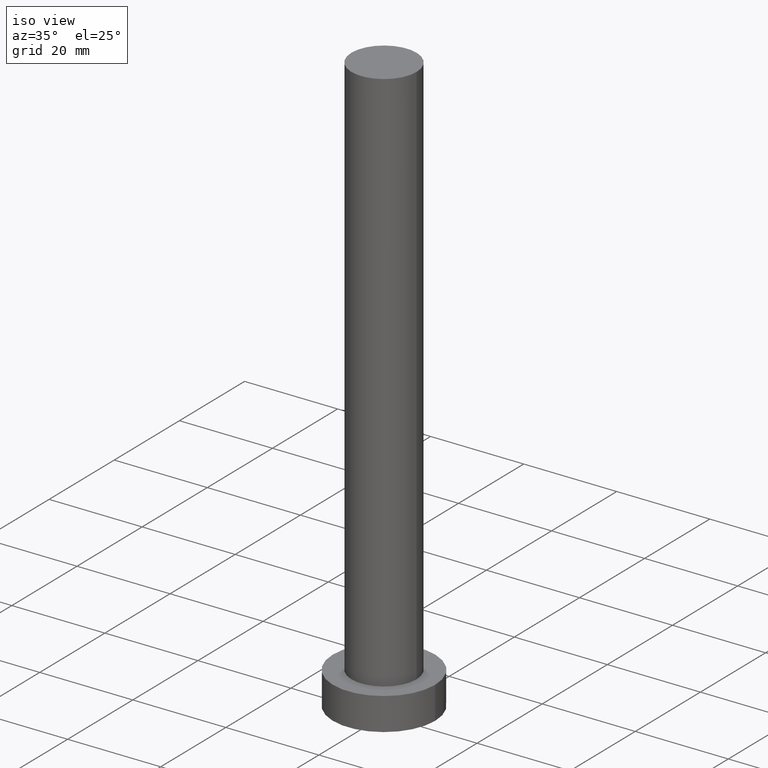
[diagram: clean part render]
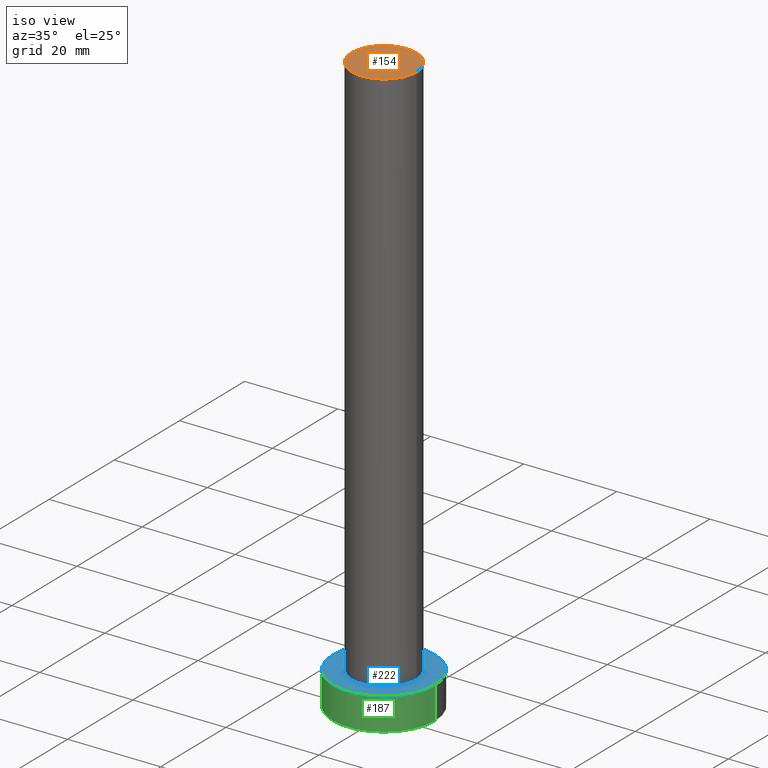
[diagram: same view with three faces highlighted in distinct colors, each labeled with its STEP entity id]
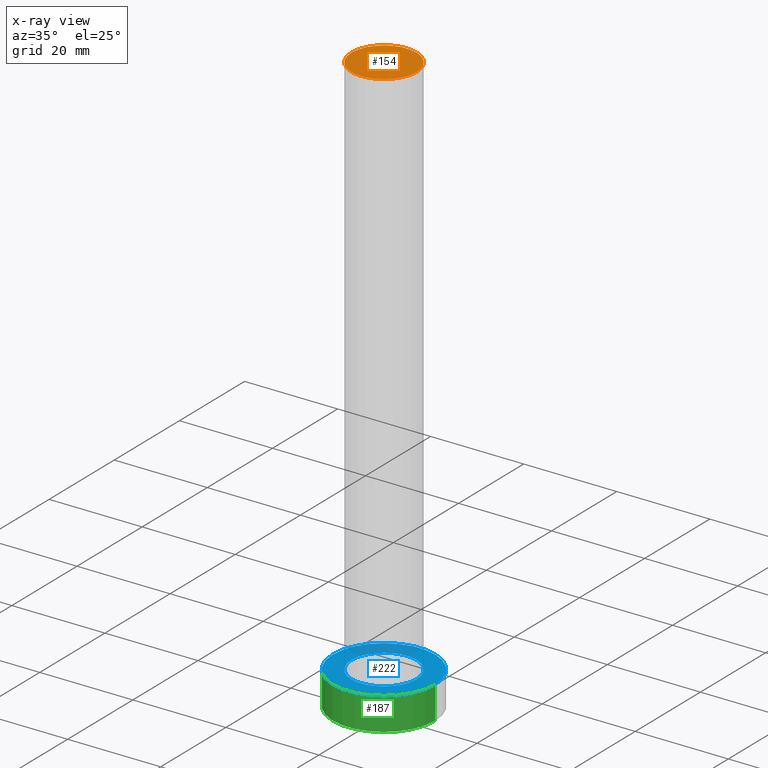
[diagram: x-ray of the same camera — body ghosted, the three highlighted faces saturated]
A machine part, iso view with three faces highlighted in distinct colors.
The next image is the same camera in x-ray (body ghosted, the three faces saturated) — at least one of them is partly hidden behind the body in this view.
Their STEP definitions:

[orange] entity #154 — the highlighted planar face has unit normal (0, 0, 1).
#4 = CARTESIAN_POINT ( 'NONE',  ( 0.000000000000000000, 0.000000000000000000, 125.0000000000000000 ) ) ;
#7 = AXIS2_PLACEMENT_3D ( 'NONE', #230, #246, #52 ) ;
#32 = DIRECTION ( 'NONE',  ( 0.000000000000000000, 0.000000000000000000, 1.000000000000000000 ) ) ;
#34 = PLANE ( 'NONE',  #82 ) ;
#44 = CARTESIAN_POINT ( 'NONE',  ( -7.000000000000000888, 0.000000000000000000, 125.0000000000000000 ) ) ;
#52 = DIRECTION ( 'NONE',  ( 1.000000000000000000, 0.000000000000000000, 0.000000000000000000 ) ) ;
#53 = DIRECTION ( 'NONE',  ( 1.000000000000000000, 0.000000000000000000, -0.000000000000000000 ) ) ;
#60 = ORIENTED_EDGE ( 'NONE', *, *, #77, .T. ) ;
#68 = AXIS2_PLACEMENT_3D ( 'NONE', #4, #161, #241 ) ;
#76 = CIRCLE ( 'NONE', #7, 7.000000000000000888 ) ;
#77 = EDGE_CURVE ( 'NONE', #212, #84, #76, .T. ) ;
#81 = EDGE_LOOP ( 'NONE', ( #60, #183 ) ) ;
#82 = AXIS2_PLACEMENT_3D ( 'NONE', #90, #32, #53 ) ;
#84 = VERTEX_POINT ( 'NONE', #168 ) ;
#90 = CARTESIAN_POINT ( 'NONE',  ( 0.000000000000000000, 0.000000000000000000, 125.0000000000000000 ) ) ;
#123 = FACE_OUTER_BOUND ( 'NONE', #81, .T. ) ;
#151 = CIRCLE ( 'NONE', #68, 7.000000000000000888 ) ;
#154 = ADVANCED_FACE ( 'NONE', ( #123 ), #34, .T. ) ;
#161 = DIRECTION ( 'NONE',  ( 0.000000000000000000, 0.000000000000000000, 1.000000000000000000 ) ) ;
#168 = CARTESIAN_POINT ( 'NONE',  ( 7.000000000000000888, 8.572527594031474176E-16, 125.0000000000000000 ) ) ;
#183 = ORIENTED_EDGE ( 'NONE', *, *, #253, .T. ) ;
#212 = VERTEX_POINT ( 'NONE', #44 ) ;
#230 = CARTESIAN_POINT ( 'NONE',  ( 0.000000000000000000, 0.000000000000000000, 125.0000000000000000 ) ) ;
#241 = DIRECTION ( 'NONE',  ( 1.000000000000000000, 0.000000000000000000, 0.000000000000000000 ) ) ;
#246 = DIRECTION ( 'NONE',  ( 0.000000000000000000, 0.000000000000000000, 1.000000000000000000 ) ) ;
#253 = EDGE_CURVE ( 'NONE', #84, #212, #151, .T. ) ;

[blue] entity #222 — the highlighted planar face has unit normal (0, 0, 1).
#5 = EDGE_LOOP ( 'NONE', ( #142, #148 ) ) ;
#6 = DIRECTION ( 'NONE',  ( 0.000000000000000000, 0.000000000000000000, 1.000000000000000000 ) ) ;
#9 = DIRECTION ( 'NONE',  ( 0.000000000000000000, 0.000000000000000000, 1.000000000000000000 ) ) ;
#10 = AXIS2_PLACEMENT_3D ( 'NONE', #200, #224, #27 ) ;
#13 = CARTESIAN_POINT ( 'NONE',  ( -7.000000000000000888, 0.000000000000000000, 7.000000000000000000 ) ) ;
#20 = AXIS2_PLACEMENT_3D ( 'NONE', #185, #122, #66 ) ;
#27 = DIRECTION ( 'NONE',  ( 1.000000000000000000, 0.000000000000000000, 0.000000000000000000 ) ) ;
#29 = CARTESIAN_POINT ( 'NONE',  ( -11.00000000000000000, 0.000000000000000000, 7.000000000000000000 ) ) ;
#30 = ORIENTED_EDGE ( 'NONE', *, *, #205, .F. ) ;
#40 = EDGE_CURVE ( 'NONE', #120, #105, #238, .T. ) ;
#64 = ORIENTED_EDGE ( 'NONE', *, *, #40, .F. ) ;
#66 = DIRECTION ( 'NONE',  ( 1.000000000000000000, 0.000000000000000000, 0.000000000000000000 ) ) ;
#78 = FACE_OUTER_BOUND ( 'NONE', #5, .T. ) ;
#86 = EDGE_LOOP ( 'NONE', ( #64, #30 ) ) ;
#95 = DIRECTION ( 'NONE',  ( 1.000000000000000000, 0.000000000000000000, -0.000000000000000000 ) ) ;
#96 = PLANE ( 'NONE',  #225 ) ;
#105 = VERTEX_POINT ( 'NONE', #147 ) ;
#112 = EDGE_CURVE ( 'NONE', #208, #201, #166, .T. ) ;
#117 = CIRCLE ( 'NONE', #10, 7.000000000000000888 ) ;
#120 = VERTEX_POINT ( 'NONE', #13 ) ;
#121 = CIRCLE ( 'NONE', #219, 11.00000000000000000 ) ;
#122 = DIRECTION ( 'NONE',  ( 0.000000000000000000, 0.000000000000000000, 1.000000000000000000 ) ) ;
#124 = DIRECTION ( 'NONE',  ( 0.000000000000000000, 0.000000000000000000, 1.000000000000000000 ) ) ;
#142 = ORIENTED_EDGE ( 'NONE', *, *, #112, .T. ) ;
#147 = CARTESIAN_POINT ( 'NONE',  ( 7.000000000000000888, 8.572527594031474176E-16, 7.000000000000000000 ) ) ;
#148 = ORIENTED_EDGE ( 'NONE', *, *, #244, .T. ) ;
#156 = CARTESIAN_POINT ( 'NONE',  ( 11.00000000000000000, 1.347111479062088405E-15, 7.000000000000000000 ) ) ;
#165 = CARTESIAN_POINT ( 'NONE',  ( 0.000000000000000000, 0.000000000000000000, 7.000000000000000000 ) ) ;
#166 = CIRCLE ( 'NONE', #20, 11.00000000000000000 ) ;
#167 = DIRECTION ( 'NONE',  ( 1.000000000000000000, 0.000000000000000000, 0.000000000000000000 ) ) ;
#178 = CARTESIAN_POINT ( 'NONE',  ( 0.000000000000000000, 0.000000000000000000, 7.000000000000000000 ) ) ;
#181 = CARTESIAN_POINT ( 'NONE',  ( 0.000000000000000000, 0.000000000000000000, 7.000000000000000000 ) ) ;
#185 = CARTESIAN_POINT ( 'NONE',  ( 0.000000000000000000, 0.000000000000000000, 7.000000000000000000 ) ) ;
#200 = CARTESIAN_POINT ( 'NONE',  ( 0.000000000000000000, 0.000000000000000000, 7.000000000000000000 ) ) ;
#201 = VERTEX_POINT ( 'NONE', #156 ) ;
#205 = EDGE_CURVE ( 'NONE', #105, #120, #117, .T. ) ;
#208 = VERTEX_POINT ( 'NONE', #29 ) ;
#219 = AXIS2_PLACEMENT_3D ( 'NONE', #178, #6, #243 ) ;
#222 = ADVANCED_FACE ( 'NONE', ( #240, #78 ), #96, .T. ) ;
#224 = DIRECTION ( 'NONE',  ( 0.000000000000000000, 0.000000000000000000, 1.000000000000000000 ) ) ;
#225 = AXIS2_PLACEMENT_3D ( 'NONE', #181, #9, #95 ) ;
#238 = CIRCLE ( 'NONE', #242, 7.000000000000000888 ) ;
#240 = FACE_BOUND ( 'NONE', #86, .T. ) ;
#242 = AXIS2_PLACEMENT_3D ( 'NONE', #165, #124, #167 ) ;
#243 = DIRECTION ( 'NONE',  ( 1.000000000000000000, 0.000000000000000000, 0.000000000000000000 ) ) ;
#244 = EDGE_CURVE ( 'NONE', #201, #208, #121, .T. ) ;

[green] entity #187 — the highlighted cylindrical surface (partial cylindrical patch) has radius 11 mm, axis along (-0, -0, -1).
#1 = DIRECTION ( 'NONE',  ( -0.000000000000000000, -0.000000000000000000, -1.000000000000000000 ) ) ;
#14 = DIRECTION ( 'NONE',  ( 0.000000000000000000, 0.000000000000000000, 1.000000000000000000 ) ) ;
#20 = AXIS2_PLACEMENT_3D ( 'NONE', #185, #122, #66 ) ;
#21 = CARTESIAN_POINT ( 'NONE',  ( 0.000000000000000000, 0.000000000000000000, 7.000000000000000000 ) ) ;
#29 = CARTESIAN_POINT ( 'NONE',  ( -11.00000000000000000, 0.000000000000000000, 7.000000000000000000 ) ) ;
#31 = CIRCLE ( 'NONE', #182, 11.00000000000000000 ) ;
#49 = CARTESIAN_POINT ( 'NONE',  ( 0.000000000000000000, 0.000000000000000000, 0.000000000000000000 ) ) ;
#63 = VECTOR ( 'NONE', #145, 1000.000000000000000 ) ;
#66 = DIRECTION ( 'NONE',  ( 1.000000000000000000, 0.000000000000000000, 0.000000000000000000 ) ) ;
#71 = EDGE_CURVE ( 'NONE', #208, #226, #247, .T. ) ;
#100 = AXIS2_PLACEMENT_3D ( 'NONE', #21, #1, #176 ) ;
#101 = ORIENTED_EDGE ( 'NONE', *, *, #140, .T. ) ;
#112 = EDGE_CURVE ( 'NONE', #208, #201, #166, .T. ) ;
#113 = FACE_OUTER_BOUND ( 'NONE', #136, .T. ) ;
#122 = DIRECTION ( 'NONE',  ( 0.000000000000000000, 0.000000000000000000, 1.000000000000000000 ) ) ;
#131 = CARTESIAN_POINT ( 'NONE',  ( 11.00000000000000000, 1.347111479062088405E-15, 7.000000000000000000 ) ) ;
#136 = EDGE_LOOP ( 'NONE', ( #162, #249, #188, #101 ) ) ;
#140 = EDGE_CURVE ( 'NONE', #226, #215, #31, .T. ) ;
#145 = DIRECTION ( 'NONE',  ( -0.000000000000000000, -0.000000000000000000, -1.000000000000000000 ) ) ;
#153 = LINE ( 'NONE', #131, #174 ) ;
#156 = CARTESIAN_POINT ( 'NONE',  ( 11.00000000000000000, 1.347111479062088405E-15, 7.000000000000000000 ) ) ;
#162 = ORIENTED_EDGE ( 'NONE', *, *, #164, .F. ) ;
#164 = EDGE_CURVE ( 'NONE', #201, #215, #153, .T. ) ;
#166 = CIRCLE ( 'NONE', #20, 11.00000000000000000 ) ;
#169 = DIRECTION ( 'NONE',  ( 1.000000000000000000, 0.000000000000000000, 0.000000000000000000 ) ) ;
#174 = VECTOR ( 'NONE', #235, 1000.000000000000000 ) ;
#176 = DIRECTION ( 'NONE',  ( -1.000000000000000000, 0.000000000000000000, 0.000000000000000000 ) ) ;
#182 = AXIS2_PLACEMENT_3D ( 'NONE', #49, #14, #169 ) ;
#185 = CARTESIAN_POINT ( 'NONE',  ( 0.000000000000000000, 0.000000000000000000, 7.000000000000000000 ) ) ;
#187 = ADVANCED_FACE ( 'NONE', ( #113 ), #196, .T. ) ;
#188 = ORIENTED_EDGE ( 'NONE', *, *, #71, .T. ) ;
#196 = CYLINDRICAL_SURFACE ( 'NONE', #100, 11.00000000000000000 ) ;
#201 = VERTEX_POINT ( 'NONE', #156 ) ;
#203 = CARTESIAN_POINT ( 'NONE',  ( -11.00000000000000000, 0.000000000000000000, 0.000000000000000000 ) ) ;
#208 = VERTEX_POINT ( 'NONE', #29 ) ;
#215 = VERTEX_POINT ( 'NONE', #221 ) ;
#221 = CARTESIAN_POINT ( 'NONE',  ( 11.00000000000000000, 1.347111479062088405E-15, 0.000000000000000000 ) ) ;
#226 = VERTEX_POINT ( 'NONE', #203 ) ;
#235 = DIRECTION ( 'NONE',  ( -0.000000000000000000, -0.000000000000000000, -1.000000000000000000 ) ) ;
#245 = CARTESIAN_POINT ( 'NONE',  ( -11.00000000000000000, 0.000000000000000000, 7.000000000000000000 ) ) ;
#247 = LINE ( 'NONE', #245, #63 ) ;
#249 = ORIENTED_EDGE ( 'NONE', *, *, #112, .F. ) ;